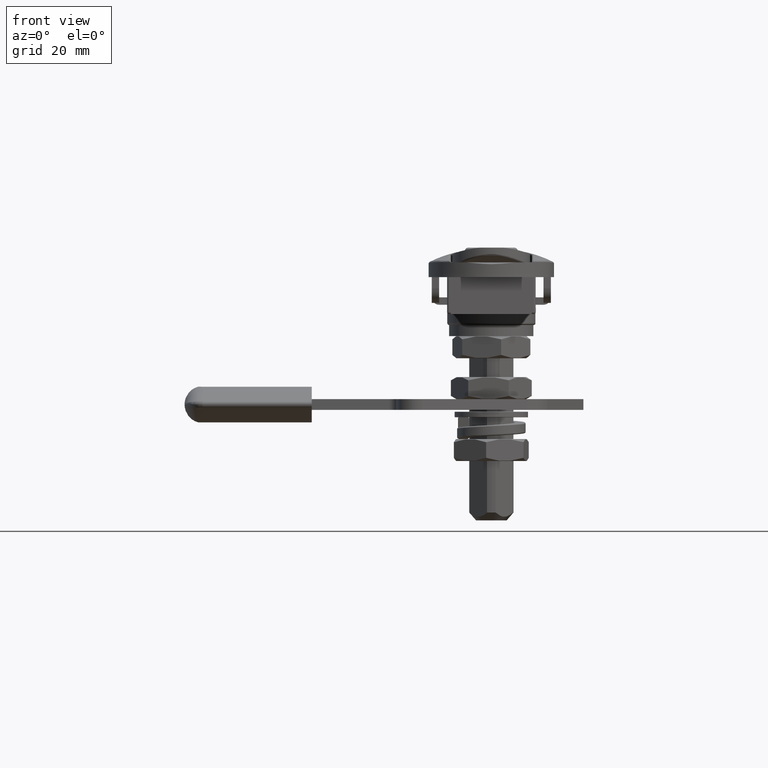
[diagram: clean part render]
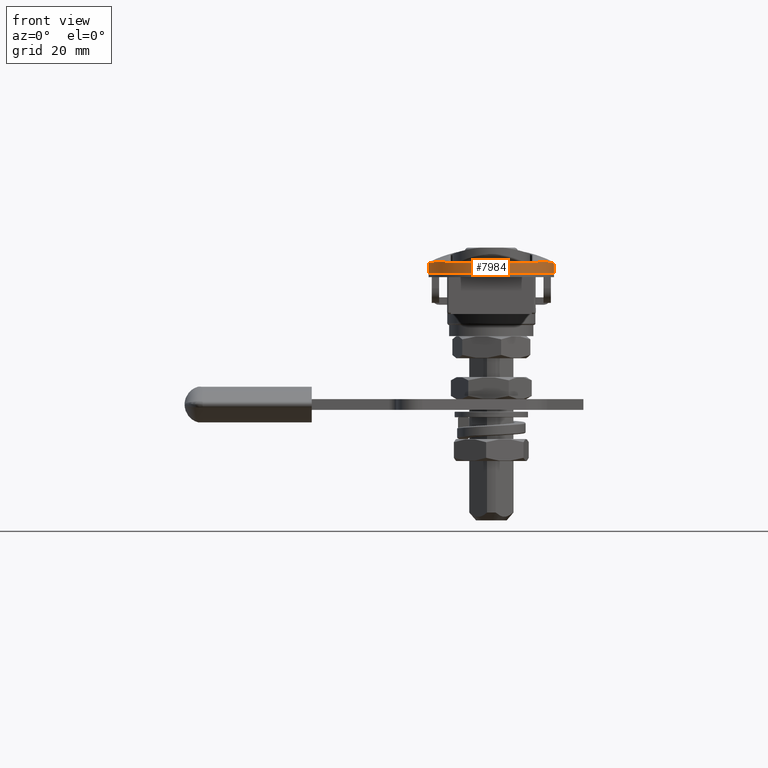
[diagram: same view with one face highlighted and labeled with its STEP entity id]
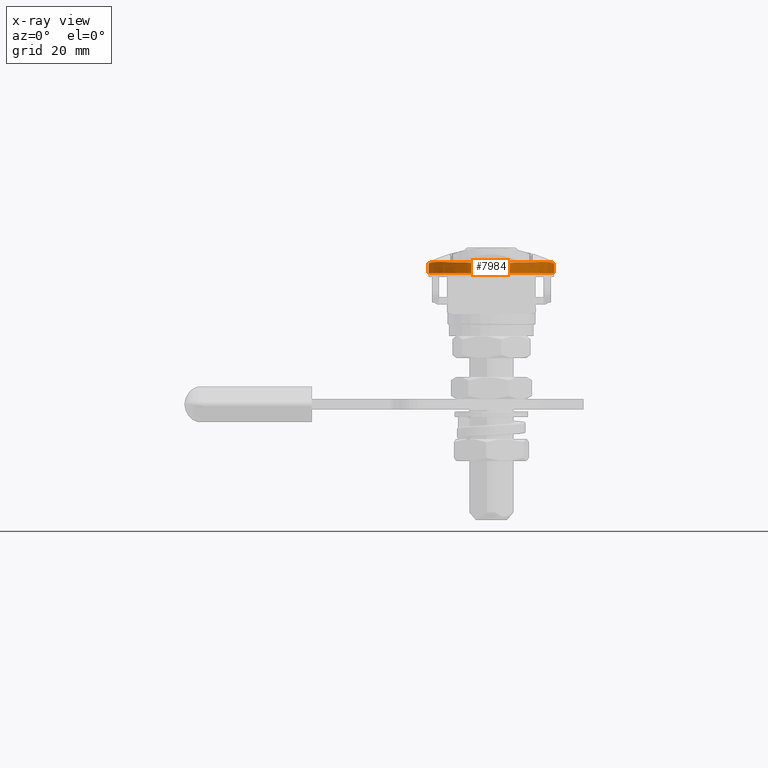
[diagram: x-ray of the same camera — body ghosted, the highlighted face saturated]
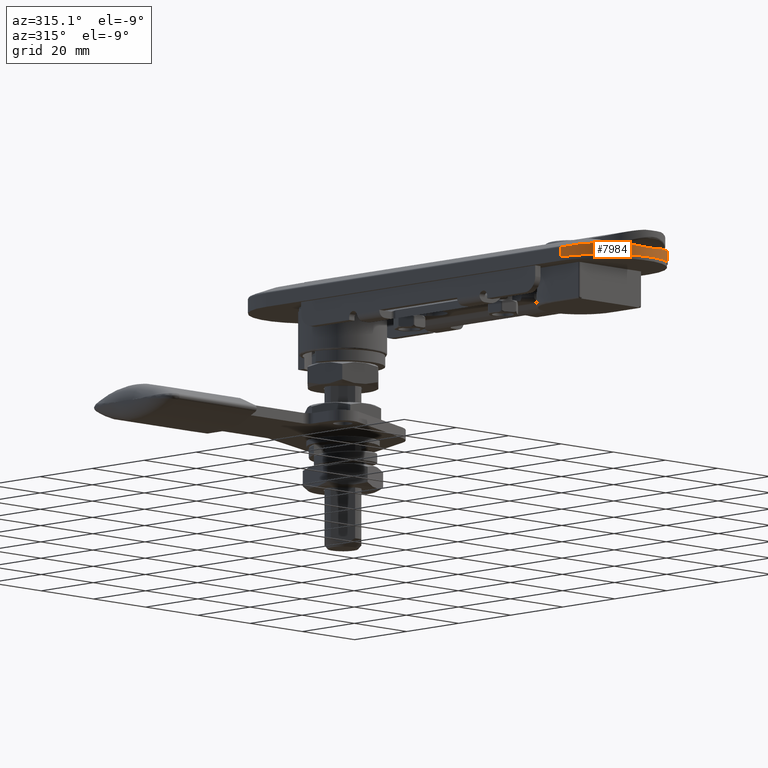
[diagram: same view with one face highlighted and labeled with its STEP entity id]
A machine part, front view. The second image highlights one B-rep face of the part: STEP entity #7984.
The next image is the same camera in x-ray: the body ghosted, the highlighted face saturated — about 0% of this face is hidden behind the body in this view.
A second angle (auxiliary view) of the same face is appended — the face is thin or edge-on in the first view.
In plain terms, the highlighted cylindrical surface (partial cylindrical patch) has radius 17 mm, axis along (0, 0, 1).
Its self-contained STEP definition (entity closure, byte-faithful):
#285=CYLINDRICAL_SURFACE('',#8512,17.);
#442=B_SPLINE_CURVE_WITH_KNOTS('',3,(#11869,#11870,#11871,#11872,#11873),
 .UNSPECIFIED.,.F.,.F.,(4,1,4),(-4.79385874649187,-4.15826789866319,-3.68157476279168),
 .UNSPECIFIED.);
#443=B_SPLINE_CURVE_WITH_KNOTS('',3,(#11897,#11898,#11899,#11900),
 .UNSPECIFIED.,.F.,.F.,(4,4),(-0.302083282706773,0.),.UNSPECIFIED.);
#455=B_SPLINE_CURVE_WITH_KNOTS('',3,(#12123,#12124,#12125,#12126),
 .UNSPECIFIED.,.F.,.F.,(4,4),(-0.3020833541256,0.),.UNSPECIFIED.);
#458=B_SPLINE_CURVE_WITH_KNOTS('',3,(#12168,#12169,#12170,#12171,#12172),
 .UNSPECIFIED.,.F.,.F.,(4,1,4),(-1.11228398370019,-0.476693135871512,0.),
 .UNSPECIFIED.);
#460=B_SPLINE_CURVE_WITH_KNOTS('',3,(#12195,#12196,#12197,#12198),
 .UNSPECIFIED.,.F.,.F.,(4,4),(0.378803795743667,0.379458747037386),
 .UNSPECIFIED.);
#461=B_SPLINE_CURVE_WITH_KNOTS('',3,(#12202,#12203,#12204,#12205),
 .UNSPECIFIED.,.F.,.F.,(4,4),(0.,0.463151710867772),.UNSPECIFIED.);
#462=B_SPLINE_CURVE_WITH_KNOTS('',3,(#12207,#12208,#12209,#12210),
 .UNSPECIFIED.,.F.,.F.,(4,4),(-0.247139131407563,0.),.UNSPECIFIED.);
#463=B_SPLINE_CURVE_WITH_KNOTS('',3,(#12212,#12213,#12214,#12215),
 .UNSPECIFIED.,.F.,.F.,(4,4),(0.,0.247139131432257),.UNSPECIFIED.);
#464=B_SPLINE_CURVE_WITH_KNOTS('',3,(#12217,#12218,#12219,#12220),
 .UNSPECIFIED.,.F.,.F.,(4,4),(0.,0.46318286151229),.UNSPECIFIED.);
#465=B_SPLINE_CURVE_WITH_KNOTS('',3,(#12223,#12224,#12225,#12226),
 .UNSPECIFIED.,.F.,.F.,(4,4),(0.468552120591409,0.4692074311201),
 .UNSPECIFIED.);
#708=CIRCLE('',#8513,17.);
#709=CIRCLE('',#8514,17.);
#710=CIRCLE('',#8515,17.);
#1097=FACE_OUTER_BOUND('',#1592,.T.);
#1592=EDGE_LOOP('',(#5482,#5483,#5484,#5485,#5486,#5487,#5488,#5489,#5490,
#5491,#5492,#5493,#5494,#5495,#5496));
#2168=LINE('',#12183,#2778);
#2170=LINE('',#12190,#2780);
#2778=VECTOR('',#9477,2.69277599463048);
#2780=VECTOR('',#9485,2.69277599463048);
#3390=VERTEX_POINT('',#11849);
#3393=VERTEX_POINT('',#11867);
#3395=VERTEX_POINT('',#11895);
#3409=VERTEX_POINT('',#12096);
#3411=VERTEX_POINT('',#12121);
#3413=VERTEX_POINT('',#12157);
#3415=VERTEX_POINT('',#12181);
#3417=VERTEX_POINT('',#12189);
#3418=VERTEX_POINT('',#12194);
#3419=VERTEX_POINT('',#12199);
#3420=VERTEX_POINT('',#12201);
#3421=VERTEX_POINT('',#12206);
#3422=VERTEX_POINT('',#12211);
#3423=VERTEX_POINT('',#12216);
#3424=VERTEX_POINT('',#12221);
#4190=EDGE_CURVE('',#3393,#3390,#442,.T.);
#4192=EDGE_CURVE('',#3395,#3393,#443,.T.);
#4216=EDGE_CURVE('',#3411,#3409,#455,.T.);
#4219=EDGE_CURVE('',#3413,#3411,#458,.T.);
#4223=EDGE_CURVE('',#3415,#3395,#2168,.T.);
#4226=EDGE_CURVE('',#3417,#3409,#2170,.T.);
#4228=EDGE_CURVE('',#3415,#3417,#708,.T.);
#4229=EDGE_CURVE('',#3418,#3413,#460,.T.);
#4230=EDGE_CURVE('',#3419,#3418,#709,.T.);
#4231=EDGE_CURVE('',#3419,#3420,#461,.T.);
#4232=EDGE_CURVE('',#3420,#3421,#462,.T.);
#4233=EDGE_CURVE('',#3421,#3422,#463,.T.);
#4234=EDGE_CURVE('',#3422,#3423,#464,.T.);
#4235=EDGE_CURVE('',#3424,#3423,#710,.T.);
#4236=EDGE_CURVE('',#3390,#3424,#465,.T.);
#5482=ORIENTED_EDGE('',*,*,#4190,.F.);
#5483=ORIENTED_EDGE('',*,*,#4192,.F.);
#5484=ORIENTED_EDGE('',*,*,#4223,.F.);
#5485=ORIENTED_EDGE('',*,*,#4228,.T.);
#5486=ORIENTED_EDGE('',*,*,#4226,.T.);
#5487=ORIENTED_EDGE('',*,*,#4216,.F.);
#5488=ORIENTED_EDGE('',*,*,#4219,.F.);
#5489=ORIENTED_EDGE('',*,*,#4229,.F.);
#5490=ORIENTED_EDGE('',*,*,#4230,.F.);
#5491=ORIENTED_EDGE('',*,*,#4231,.T.);
#5492=ORIENTED_EDGE('',*,*,#4232,.T.);
#5493=ORIENTED_EDGE('',*,*,#4233,.T.);
#5494=ORIENTED_EDGE('',*,*,#4234,.T.);
#5495=ORIENTED_EDGE('',*,*,#4235,.F.);
#5496=ORIENTED_EDGE('',*,*,#4236,.F.);
#7984=ADVANCED_FACE('',(#1097),#285,.T.);
#8512=AXIS2_PLACEMENT_3D('',#12192,#9487,#9488);
#8513=AXIS2_PLACEMENT_3D('',#12193,#9489,#9490);
#8514=AXIS2_PLACEMENT_3D('',#12200,#9491,#9492);
#8515=AXIS2_PLACEMENT_3D('',#12222,#9493,#9494);
#9477=DIRECTION('',(0.,0.,1.));
#9485=DIRECTION('',(0.,0.,1.));
#9487=DIRECTION('center_axis',(0.,0.,1.));
#9488=DIRECTION('ref_axis',(-1.,0.,0.));
#9489=DIRECTION('center_axis',(0.,0.,1.));
#9490=DIRECTION('ref_axis',(-1.,0.,0.));
#9491=DIRECTION('center_axis',(6.34413156928661E-16,0.,1.));
#9492=DIRECTION('ref_axis',(-1.,0.,0.));
#9493=DIRECTION('center_axis',(6.34413156928661E-16,0.,1.));
#9494=DIRECTION('ref_axis',(-1.,0.,0.));
#11849=CARTESIAN_POINT('',(-11.1378544650264,-69.4932160269884,3.00489900176681));
#11867=CARTESIAN_POINT('',(-16.7166468226058,-59.7409090909091,2.82870945131591));
#11869=CARTESIAN_POINT('Ctrl Pts',(-16.7166468226058,-59.7409090909091,
2.8287094513159));
#11870=CARTESIAN_POINT('Ctrl Pts',(-16.3213215379648,-61.8789574672999,
3.01602428569184));
#11871=CARTESIAN_POINT('Ctrl Pts',(-14.8971222200532,-65.499977519203,3.16861626659551));
#11872=CARTESIAN_POINT('Ctrl Pts',(-12.3735320880451,-68.4216154635508,
3.07552392151393));
#11873=CARTESIAN_POINT('Ctrl Pts',(-11.1378544650264,-69.4932160269884,
3.00489900176681));
#11895=CARTESIAN_POINT('',(-17.,-56.65,2.69277599463048));
#11897=CARTESIAN_POINT('Ctrl Pts',(-17.,-56.65,2.69277599463048));
#11898=CARTESIAN_POINT('Ctrl Pts',(-17.,-57.6874577385889,2.69277599463048));
#11899=CARTESIAN_POINT('Ctrl Pts',(-16.904536815247,-58.7247385869875,2.73968255569388));
#11900=CARTESIAN_POINT('Ctrl Pts',(-16.7166468226058,-59.7409090909091,
2.8287094513159));
#12096=CARTESIAN_POINT('',(17.,-56.65,2.69277599463048));
#12121=CARTESIAN_POINT('',(16.7166468226058,-59.7409090909091,2.82870945131589));
#12123=CARTESIAN_POINT('Ctrl Pts',(16.7166468226058,-59.7409090909091,2.82870945131589));
#12124=CARTESIAN_POINT('Ctrl Pts',(16.9045368596681,-58.7247383467435,2.73968253464605));
#12125=CARTESIAN_POINT('Ctrl Pts',(17.,-57.6874579838657,2.69277599463048));
#12126=CARTESIAN_POINT('Ctrl Pts',(17.,-56.65,2.69277599463048));
#12157=CARTESIAN_POINT('',(11.1378544650264,-69.4932160269884,3.0048990017668));
#12168=CARTESIAN_POINT('Ctrl Pts',(11.1378544650264,-69.4932160269884,3.0048990017668));
#12169=CARTESIAN_POINT('Ctrl Pts',(12.7854246290514,-68.0644152757382,3.09906556142962));
#12170=CARTESIAN_POINT('Ctrl Pts',(15.1834560926697,-64.9984534526807,3.16683304755867));
#12171=CARTESIAN_POINT('Ctrl Pts',(16.420152859125,-61.3444453732022,2.96919557709784));
#12172=CARTESIAN_POINT('Ctrl Pts',(16.7166468226058,-59.7409090909091,2.82870945131589));
#12181=CARTESIAN_POINT('',(-17.,-56.65,0.));
#12183=CARTESIAN_POINT('',(-17.,-56.65,0.));
#12189=CARTESIAN_POINT('',(17.,-56.65,0.));
#12190=CARTESIAN_POINT('',(17.,-56.65,0.));
#12192=CARTESIAN_POINT('Origin',(6.93762411716976E-15,-56.65,0.));
#12193=CARTESIAN_POINT('Origin',(6.93762411716976E-15,-56.65,0.));
#12194=CARTESIAN_POINT('',(11.1346408635244,-69.4960022123746,3.00000000000001));
#12195=CARTESIAN_POINT('Ctrl Pts',(11.1346408635244,-69.4960022123746,3.00000000000002));
#12196=CARTESIAN_POINT('Ctrl Pts',(11.135707417048,-69.4950777465174,3.00163756374958));
#12197=CARTESIAN_POINT('Ctrl Pts',(11.1367786348007,-69.4941490051816,3.00327057537679));
#12198=CARTESIAN_POINT('Ctrl Pts',(11.1378544650264,-69.4932160269884,3.00489900176679));
#12199=CARTESIAN_POINT('',(6.91170651510385,-72.1815264236672,3.));
#12200=CARTESIAN_POINT('Origin',(6.93762411716976E-15,-56.65,3.00000000000001));
#12201=CARTESIAN_POINT('',(2.5,-73.4651717208003,2.6139565384919));
#12202=CARTESIAN_POINT('Ctrl Pts',(6.91170651510386,-72.1815264236672,3.00000000000001));
#12203=CARTESIAN_POINT('Ctrl Pts',(5.50524982745265,-72.807415701133,2.88346173208138));
#12204=CARTESIAN_POINT('Ctrl Pts',(4.02103075078965,-73.2390320809493,2.75210830119223));
#12205=CARTESIAN_POINT('Ctrl Pts',(2.5,-73.4651717208003,2.61395653849191));
#12206=CARTESIAN_POINT('',(1.08234047033578E-14,-73.65,2.49999999999999));
#12207=CARTESIAN_POINT('Ctrl Pts',(2.5,-73.4651717208003,2.61395653849191));
#12208=CARTESIAN_POINT('Ctrl Pts',(1.6631141253683,-73.5895959444311,2.53794409844141));
#12209=CARTESIAN_POINT('Ctrl Pts',(0.823797104691885,-73.65,2.49999999999999));
#12210=CARTESIAN_POINT('Ctrl Pts',(7.21644966006352E-15,-73.65,2.49999999999999));
#12211=CARTESIAN_POINT('',(-2.5,-73.4651717208003,2.61395653849191));
#12212=CARTESIAN_POINT('Ctrl Pts',(6.66133814775094E-15,-73.65,2.49999999999999));
#12213=CARTESIAN_POINT('Ctrl Pts',(-0.823797104774183,-73.65,2.49999999999999));
#12214=CARTESIAN_POINT('Ctrl Pts',(-1.66311412520153,-73.5895959444559,
2.53794409842626));
#12215=CARTESIAN_POINT('Ctrl Pts',(-2.5,-73.4651717208002,2.61395653849191));
#12216=CARTESIAN_POINT('',(-6.91170651510371,-72.1815264236672,3.));
#12217=CARTESIAN_POINT('Ctrl Pts',(-2.49999999999999,-73.4651717208002,
2.61395653849192));
#12218=CARTESIAN_POINT('Ctrl Pts',(-4.02103075078963,-73.2390320809493,
2.75210830119224));
#12219=CARTESIAN_POINT('Ctrl Pts',(-5.50524982745257,-72.807415701133,2.88346173208139));
#12220=CARTESIAN_POINT('Ctrl Pts',(-6.91170651510372,-72.1815264236672,
3.00000000000001));
#12221=CARTESIAN_POINT('',(-11.1346408635244,-69.4960022123746,3.00000000000001));
#12222=CARTESIAN_POINT('Origin',(6.93762411716976E-15,-56.65,3.00000000000001));
#12223=CARTESIAN_POINT('Ctrl Pts',(-11.1378544650264,-69.4932160269884,
3.00489900176681));
#12224=CARTESIAN_POINT('Ctrl Pts',(-11.1367781937171,-69.4941493876967,
3.0032699077324));
#12225=CARTESIAN_POINT('Ctrl Pts',(-11.1357069795371,-69.4950781257425,
3.00163689200464));
#12226=CARTESIAN_POINT('Ctrl Pts',(-11.1346408635244,-69.4960022123746,
3.00000000000002));